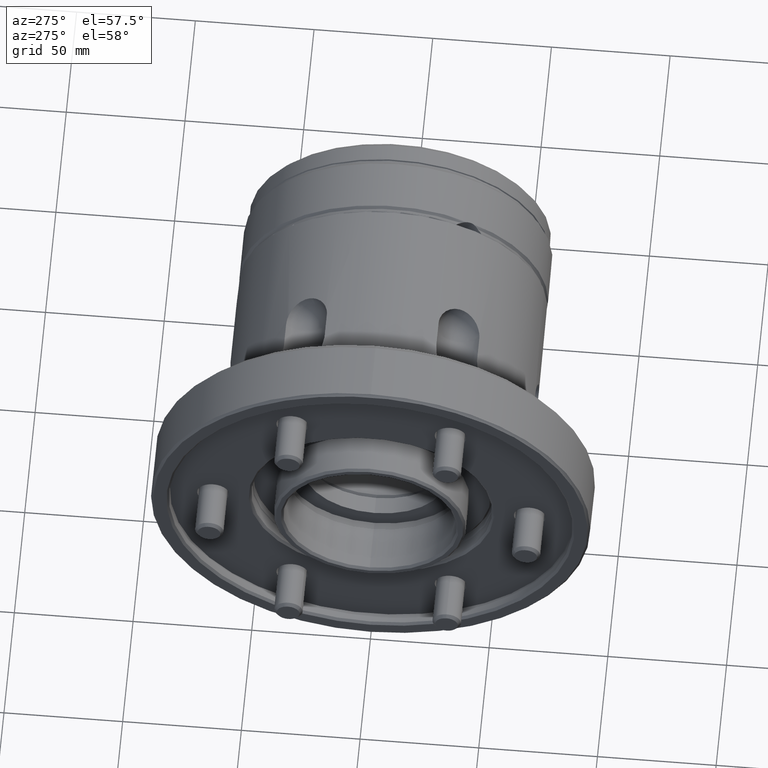
[diagram: clean part render]
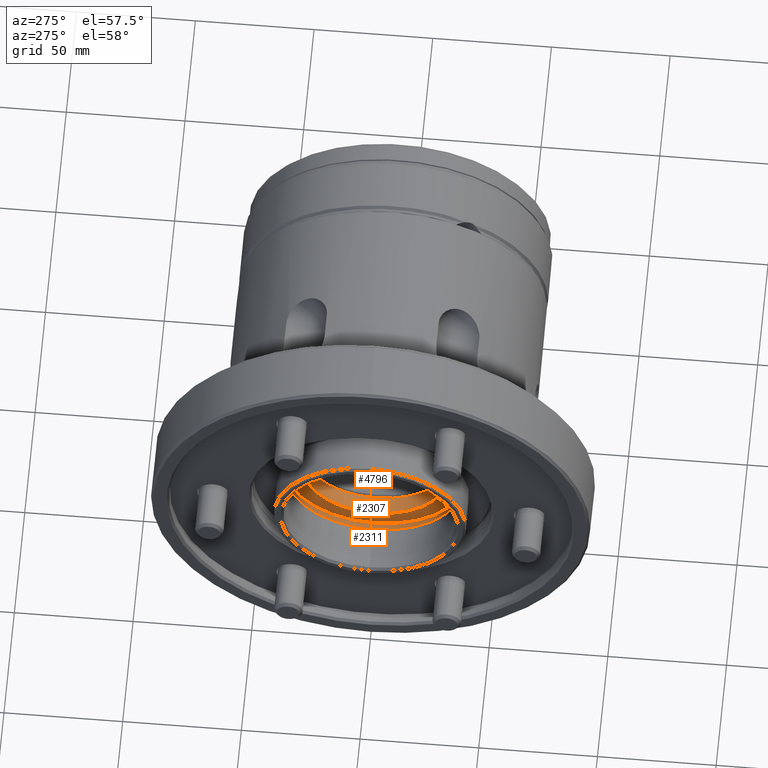
[diagram: same view with one multi-face feature highlighted, each face labeled with its STEP entity id]
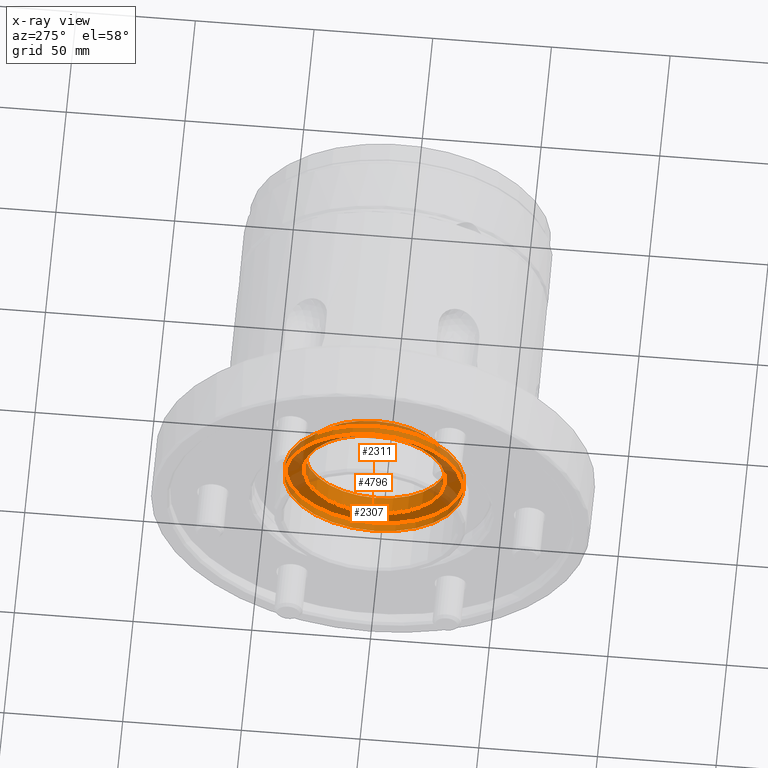
[diagram: x-ray of the same camera — body ghosted, the whole feature saturated]
A machine part, auxiliary view. The highlighted faces form ONE feature: a stepped (counterbored) hole: 2 coaxial cylindrical walls of radii 30 -> 37.75 mm joined by 1 annular planar shoulder face(s). The faces share edges in the B-rep.
The next image is the same camera in x-ray: the body ghosted and the whole hole feature saturated, so the bore chain is visible through the body.
Their STEP definitions:
[1] entity #2311 (Cylinder):
#156 = VERTEX_POINT ( 'NONE', #2567 ) ;
#532 = EDGE_CURVE ( 'NONE', #3617, #3617, #4188, .T. ) ;
#905 = AXIS2_PLACEMENT_3D ( 'NONE', #2039, #7155, #3484 ) ;
#1073 = EDGE_LOOP ( 'NONE', ( #5362 ) ) ;
#1624 = FACE_OUTER_BOUND ( 'NONE', #1073, .T. ) ;
#1743 = DIRECTION ( 'NONE',  ( -1.000000000000000000, -0.0000000000000000000, -0.0000000000000000000 ) ) ;
#2039 = CARTESIAN_POINT ( 'NONE',  ( 20.00000000000000000, 0.0000000000000000000, 0.0000000000000000000 ) ) ;
#2211 = CYLINDRICAL_SURFACE ( 'NONE', #2903, 37.75000000000000000 ) ;
#2251 = EDGE_LOOP ( 'NONE', ( #7814 ) ) ;
#2269 = EDGE_CURVE ( 'NONE', #156, #156, #4297, .T. ) ;
#2311 = ADVANCED_FACE ( 'NONE', ( #3996, #1624 ), #2211, .F. ) ;
#2567 = CARTESIAN_POINT ( 'NONE',  ( 20.00000000000000000, 0.0000000000000000000, 37.75000000000000000 ) ) ;
#2903 = AXIS2_PLACEMENT_3D ( 'NONE', #6431, #1743, #3801 ) ;
#3484 = DIRECTION ( 'NONE',  ( 0.0000000000000000000, 0.0000000000000000000, 1.000000000000000000 ) ) ;
#3617 = VERTEX_POINT ( 'NONE', #6057 ) ;
#3801 = DIRECTION ( 'NONE',  ( 0.0000000000000000000, 0.0000000000000000000, 1.000000000000000000 ) ) ;
#3996 = FACE_OUTER_BOUND ( 'NONE', #2251, .T. ) ;
#4188 = CIRCLE ( 'NONE', #6596, 37.75000000000000000 ) ;
#4297 = CIRCLE ( 'NONE', #905, 37.75000000000000000 ) ;
#5242 = DIRECTION ( 'NONE',  ( 0.0000000000000000000, 0.0000000000000000000, 1.000000000000000000 ) ) ;
#5247 = DIRECTION ( 'NONE',  ( -1.000000000000000000, -0.0000000000000000000, -0.0000000000000000000 ) ) ;
#5258 = CARTESIAN_POINT ( 'NONE',  ( 24.00000000000000000, 0.0000000000000000000, 0.0000000000000000000 ) ) ;
#5362 = ORIENTED_EDGE ( 'NONE', *, *, #2269, .T. ) ;
#6057 = CARTESIAN_POINT ( 'NONE',  ( 24.00000000000000000, 0.0000000000000000000, 37.75000000000000000 ) ) ;
#6431 = CARTESIAN_POINT ( 'NONE',  ( 0.0000000000000000000, 0.0000000000000000000, 0.0000000000000000000 ) ) ;
#6596 = AXIS2_PLACEMENT_3D ( 'NONE', #5258, #5247, #5242 ) ;
#7155 = DIRECTION ( 'NONE',  ( -1.000000000000000000, -0.0000000000000000000, -0.0000000000000000000 ) ) ;
#7814 = ORIENTED_EDGE ( 'NONE', *, *, #532, .F. ) ;
[2] entity #4796 (Cylinder):
#58 = DIRECTION ( 'NONE',  ( 0.0000000000000000000, 0.0000000000000000000, 1.000000000000000000 ) ) ;
#121 = DIRECTION ( 'NONE',  ( -1.000000000000000000, -0.0000000000000000000, -0.0000000000000000000 ) ) ;
#579 = FACE_OUTER_BOUND ( 'NONE', #1724, .T. ) ;
#1149 = ORIENTED_EDGE ( 'NONE', *, *, #7635, .T. ) ;
#1724 = EDGE_LOOP ( 'NONE', ( #3527 ) ) ;
#1777 = AXIS2_PLACEMENT_3D ( 'NONE', #3048, #5480, #58 ) ;
#1818 = CARTESIAN_POINT ( 'NONE',  ( 0.0000000000000000000, 0.0000000000000000000, 0.0000000000000000000 ) ) ;
#2372 = VERTEX_POINT ( 'NONE', #4760 ) ;
#2534 = DIRECTION ( 'NONE',  ( 0.0000000000000000000, 0.0000000000000000000, 1.000000000000000000 ) ) ;
#2950 = EDGE_LOOP ( 'NONE', ( #1149 ) ) ;
#3048 = CARTESIAN_POINT ( 'NONE',  ( 31.50000000000000000, 0.0000000000000000000, 0.0000000000000000000 ) ) ;
#3527 = ORIENTED_EDGE ( 'NONE', *, *, #7246, .F. ) ;
#3816 = AXIS2_PLACEMENT_3D ( 'NONE', #1818, #4195, #6629 ) ;
#4195 = DIRECTION ( 'NONE',  ( -1.000000000000000000, -0.0000000000000000000, -0.0000000000000000000 ) ) ;
#4760 = CARTESIAN_POINT ( 'NONE',  ( 31.50000000000000000, 0.0000000000000000000, 30.00000000000000000 ) ) ;
#4784 = FACE_OUTER_BOUND ( 'NONE', #2950, .T. ) ;
#4796 = ADVANCED_FACE ( 'NONE', ( #579, #4784 ), #7237, .F. ) ;
#4800 = VERTEX_POINT ( 'NONE', #7252 ) ;
#5055 = AXIS2_PLACEMENT_3D ( 'NONE', #5545, #121, #2534 ) ;
#5158 = CIRCLE ( 'NONE', #1777, 30.00000000000000000 ) ;
#5480 = DIRECTION ( 'NONE',  ( -1.000000000000000000, -0.0000000000000000000, -0.0000000000000000000 ) ) ;
#5545 = CARTESIAN_POINT ( 'NONE',  ( 24.00000000000000000, 0.0000000000000000000, 0.0000000000000000000 ) ) ;
#6629 = DIRECTION ( 'NONE',  ( 0.0000000000000000000, 0.0000000000000000000, 1.000000000000000000 ) ) ;
#7237 = CYLINDRICAL_SURFACE ( 'NONE', #3816, 30.00000000000000000 ) ;
#7246 = EDGE_CURVE ( 'NONE', #2372, #2372, #5158, .T. ) ;
#7252 = CARTESIAN_POINT ( 'NONE',  ( 24.00000000000000000, 0.0000000000000000000, 30.00000000000000000 ) ) ;
#7492 = CIRCLE ( 'NONE', #5055, 30.00000000000000000 ) ;
#7635 = EDGE_CURVE ( 'NONE', #4800, #4800, #7492, .T. ) ;
[3] entity #2307 (Plane):
#121 = DIRECTION ( 'NONE',  ( -1.000000000000000000, -0.0000000000000000000, -0.0000000000000000000 ) ) ;
#532 = EDGE_CURVE ( 'NONE', #3617, #3617, #4188, .T. ) ;
#547 = ORIENTED_EDGE ( 'NONE', *, *, #7635, .F. ) ;
#1020 = DIRECTION ( 'NONE',  ( 1.000000000000000000, 0.0000000000000000000, 0.0000000000000000000 ) ) ;
#2307 = ADVANCED_FACE ( 'NONE', ( #2885, #7771 ), #2329, .F. ) ;
#2329 = PLANE ( 'NONE',  #5313 ) ;
#2534 = DIRECTION ( 'NONE',  ( 0.0000000000000000000, 0.0000000000000000000, 1.000000000000000000 ) ) ;
#2736 = DIRECTION ( 'NONE',  ( 0.0000000000000000000, 0.0000000000000000000, -1.000000000000000000 ) ) ;
#2885 = FACE_BOUND ( 'NONE', #3492, .T. ) ;
#3492 = EDGE_LOOP ( 'NONE', ( #547 ) ) ;
#3617 = VERTEX_POINT ( 'NONE', #6057 ) ;
#4188 = CIRCLE ( 'NONE', #6596, 37.75000000000000000 ) ;
#4714 = CARTESIAN_POINT ( 'NONE',  ( 24.00000000000000000, 37.75000000000000000, 0.0000000000000000000 ) ) ;
#4800 = VERTEX_POINT ( 'NONE', #7252 ) ;
#5055 = AXIS2_PLACEMENT_3D ( 'NONE', #5545, #121, #2534 ) ;
#5242 = DIRECTION ( 'NONE',  ( 0.0000000000000000000, 0.0000000000000000000, 1.000000000000000000 ) ) ;
#5247 = DIRECTION ( 'NONE',  ( -1.000000000000000000, -0.0000000000000000000, -0.0000000000000000000 ) ) ;
#5258 = CARTESIAN_POINT ( 'NONE',  ( 24.00000000000000000, 0.0000000000000000000, 0.0000000000000000000 ) ) ;
#5313 = AXIS2_PLACEMENT_3D ( 'NONE', #4714, #1020, #2736 ) ;
#5334 = EDGE_LOOP ( 'NONE', ( #5962 ) ) ;
#5545 = CARTESIAN_POINT ( 'NONE',  ( 24.00000000000000000, 0.0000000000000000000, 0.0000000000000000000 ) ) ;
#5962 = ORIENTED_EDGE ( 'NONE', *, *, #532, .T. ) ;
#6057 = CARTESIAN_POINT ( 'NONE',  ( 24.00000000000000000, 0.0000000000000000000, 37.75000000000000000 ) ) ;
#6596 = AXIS2_PLACEMENT_3D ( 'NONE', #5258, #5247, #5242 ) ;
#7252 = CARTESIAN_POINT ( 'NONE',  ( 24.00000000000000000, 0.0000000000000000000, 30.00000000000000000 ) ) ;
#7492 = CIRCLE ( 'NONE', #5055, 30.00000000000000000 ) ;
#7635 = EDGE_CURVE ( 'NONE', #4800, #4800, #7492, .T. ) ;
#7771 = FACE_OUTER_BOUND ( 'NONE', #5334, .T. ) ;